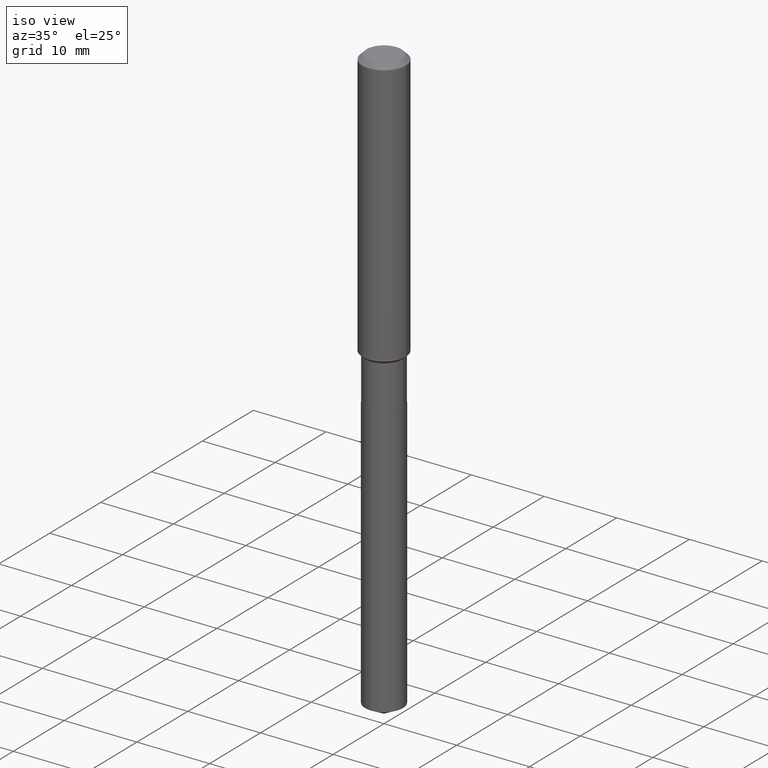
[diagram: clean part render]
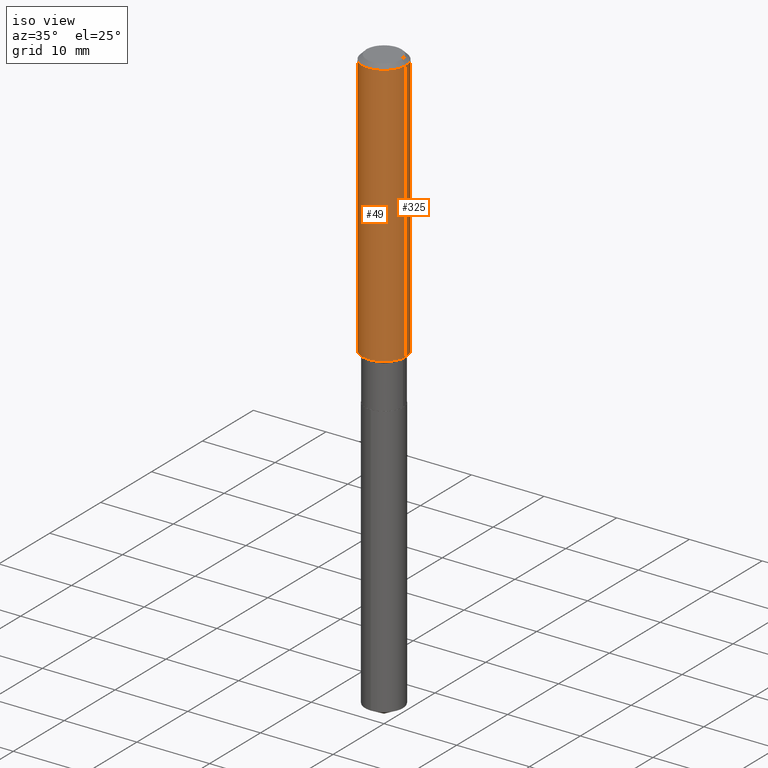
[diagram: same view with one multi-face feature highlighted, each face labeled with its STEP entity id]
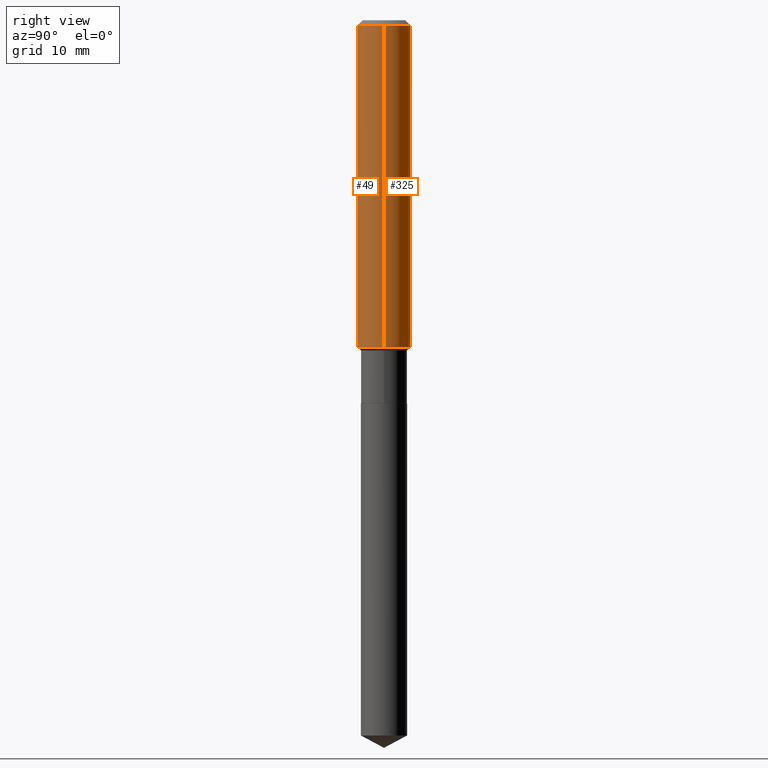
[diagram: same view with one multi-face feature highlighted, each face labeled with its STEP entity id]
A machine part, iso view. The highlighted faces form ONE feature: a constant-radius fillet chain: 2 tangent blend faces with common blend radius 2.9997 mm. The faces share edges in the B-rep.
A second angle (right view) of the same feature is appended — it is thin or edge-on in the first view.
Their STEP definitions:
[1] entity #325 (Cylinder):
#6 = DIRECTION ( 'NONE',  ( -2.445468806185136877E-29, 3.491481338843145188E-15, 1.000000000000000000 ) ) ;
#10 = EDGE_CURVE ( 'NONE', #382, #62, #107, .T. ) ;
#32 = VECTOR ( 'NONE', #6, 39.37007874015748143 ) ;
#33 = CIRCLE ( 'NONE', #448, 0.1181000000000001632 ) ;
#41 = EDGE_LOOP ( 'NONE', ( #432, #351, #135, #131 ) ) ;
#62 = VERTEX_POINT ( 'NONE', #322 ) ;
#73 = EDGE_CURVE ( 'NONE', #161, #62, #453, .T. ) ;
#101 = DIRECTION ( 'NONE',  ( 1.000000000000000000, -6.982962677686263555E-15, 0.000000000000000000 ) ) ;
#107 = CIRCLE ( 'NONE', #385, 0.1180999999999999966 ) ;
#131 = ORIENTED_EDGE ( 'NONE', *, *, #159, .F. ) ;
#135 = ORIENTED_EDGE ( 'NONE', *, *, #10, .F. ) ;
#159 = EDGE_CURVE ( 'NONE', #462, #382, #413, .T. ) ;
#161 = VERTEX_POINT ( 'NONE', #324 ) ;
#167 = DIRECTION ( 'NONE',  ( -2.445468806185136597E-29, 3.491481338843145583E-15, 1.000000000000000000 ) ) ;
#199 = CARTESIAN_POINT ( 'NONE',  ( 0.1180999999999999966, -9.071566814582237199E-16, -0.02362000000000014088 ) ) ;
#203 = DIRECTION ( 'NONE',  ( -2.445468806185136597E-29, 3.491481338843145583E-15, 1.000000000000000000 ) ) ;
#209 = CARTESIAN_POINT ( 'NONE',  ( 0.1181000000000001632, -5.885764666954829235E-15, -1.449549999999999894 ) ) ;
#231 = CARTESIAN_POINT ( 'NONE',  ( 5.776197320209327532E-31, -8.246878922347559293E-17, -0.02362000000000014088 ) ) ;
#242 = CYLINDRICAL_SURFACE ( 'NONE', #280, 0.1181000000000000799 ) ;
#250 = DIRECTION ( 'NONE',  ( -2.445468806185136597E-29, 3.491481338843145583E-15, 1.000000000000000000 ) ) ;
#255 = CARTESIAN_POINT ( 'NONE',  ( 3.544829308005664880E-29, -5.061076774720080972E-15, -1.449549999999999894 ) ) ;
#280 = AXIS2_PLACEMENT_3D ( 'NONE', #452, #167, #457 ) ;
#312 = FACE_OUTER_BOUND ( 'NONE', #41, .T. ) ;
#322 = CARTESIAN_POINT ( 'NONE',  ( -0.1180999999999999966, -1.732621811039098637E-15, -0.02362000000000014088 ) ) ;
#324 = CARTESIAN_POINT ( 'NONE',  ( -0.1181000000000001632, -4.221925803787401987E-15, -1.449549999999999894 ) ) ;
#325 = ADVANCED_FACE ( 'NONE', ( #312 ), #242, .T. ) ;
#332 = VECTOR ( 'NONE', #483, 39.37007874015748143 ) ;
#351 = ORIENTED_EDGE ( 'NONE', *, *, #73, .T. ) ;
#361 = DIRECTION ( 'NONE',  ( 1.000000000000000000, -6.982962677686266711E-15, 0.000000000000000000 ) ) ;
#382 = VERTEX_POINT ( 'NONE', #199 ) ;
#384 = CARTESIAN_POINT ( 'NONE',  ( 0.1181000000000000799, -8.246878922347486570E-16, 5.758764772215004644E-30 ) ) ;
#385 = AXIS2_PLACEMENT_3D ( 'NONE', #231, #203, #361 ) ;
#410 = CARTESIAN_POINT ( 'NONE',  ( -0.1181000000000000799, 8.391509709326788873E-16, -5.809262341591047988E-30 ) ) ;
#413 = LINE ( 'NONE', #384, #32 ) ;
#432 = ORIENTED_EDGE ( 'NONE', *, *, #449, .T. ) ;
#448 = AXIS2_PLACEMENT_3D ( 'NONE', #255, #250, #101 ) ;
#449 = EDGE_CURVE ( 'NONE', #462, #161, #33, .T. ) ;
#452 = CARTESIAN_POINT ( 'NONE',  ( 0.000000000000000000, 0.000000000000000000, 0.000000000000000000 ) ) ;
#453 = LINE ( 'NONE', #410, #332 ) ;
#457 = DIRECTION ( 'NONE',  ( 1.000000000000000000, -6.982962677686266711E-15, 4.876176775795936353E-29 ) ) ;
#462 = VERTEX_POINT ( 'NONE', #209 ) ;
#483 = DIRECTION ( 'NONE',  ( -2.445468806185136877E-29, 3.491481338843145188E-15, 1.000000000000000000 ) ) ;
[2] entity #49 (Cylinder):
#5 = CARTESIAN_POINT ( 'NONE',  ( 3.544829308005664880E-29, -5.061076774720080972E-15, -1.449549999999999894 ) ) ;
#6 = DIRECTION ( 'NONE',  ( -2.445468806185136877E-29, 3.491481338843145188E-15, 1.000000000000000000 ) ) ;
#15 = DIRECTION ( 'NONE',  ( 1.000000000000000000, -6.982962677686266711E-15, 4.876176775795936353E-29 ) ) ;
#32 = VECTOR ( 'NONE', #6, 39.37007874015748143 ) ;
#36 = EDGE_CURVE ( 'NONE', #62, #382, #347, .T. ) ;
#42 = CIRCLE ( 'NONE', #371, 0.1181000000000001632 ) ;
#49 = ADVANCED_FACE ( 'NONE', ( #341 ), #477, .T. ) ;
#56 = DIRECTION ( 'NONE',  ( -2.445468806185136597E-29, 3.491481338843145583E-15, 1.000000000000000000 ) ) ;
#62 = VERTEX_POINT ( 'NONE', #322 ) ;
#73 = EDGE_CURVE ( 'NONE', #161, #62, #453, .T. ) ;
#77 = CARTESIAN_POINT ( 'NONE',  ( 5.776197320209327532E-31, -8.246878922347559293E-17, -0.02362000000000014088 ) ) ;
#88 = DIRECTION ( 'NONE',  ( 1.000000000000000000, -6.982962677686266711E-15, 0.000000000000000000 ) ) ;
#99 = AXIS2_PLACEMENT_3D ( 'NONE', #77, #423, #88 ) ;
#125 = DIRECTION ( 'NONE',  ( -2.445468806185136597E-29, 3.491481338843145583E-15, 1.000000000000000000 ) ) ;
#148 = ORIENTED_EDGE ( 'NONE', *, *, #310, .T. ) ;
#159 = EDGE_CURVE ( 'NONE', #462, #382, #413, .T. ) ;
#161 = VERTEX_POINT ( 'NONE', #324 ) ;
#169 = ORIENTED_EDGE ( 'NONE', *, *, #73, .F. ) ;
#177 = ORIENTED_EDGE ( 'NONE', *, *, #36, .F. ) ;
#199 = CARTESIAN_POINT ( 'NONE',  ( 0.1180999999999999966, -9.071566814582237199E-16, -0.02362000000000014088 ) ) ;
#209 = CARTESIAN_POINT ( 'NONE',  ( 0.1181000000000001632, -5.885764666954829235E-15, -1.449549999999999894 ) ) ;
#297 = CARTESIAN_POINT ( 'NONE',  ( 0.000000000000000000, 0.000000000000000000, 0.000000000000000000 ) ) ;
#310 = EDGE_CURVE ( 'NONE', #161, #462, #42, .T. ) ;
#322 = CARTESIAN_POINT ( 'NONE',  ( -0.1180999999999999966, -1.732621811039098637E-15, -0.02362000000000014088 ) ) ;
#324 = CARTESIAN_POINT ( 'NONE',  ( -0.1181000000000001632, -4.221925803787401987E-15, -1.449549999999999894 ) ) ;
#332 = VECTOR ( 'NONE', #483, 39.37007874015748143 ) ;
#335 = ORIENTED_EDGE ( 'NONE', *, *, #159, .T. ) ;
#341 = FACE_OUTER_BOUND ( 'NONE', #345, .T. ) ;
#345 = EDGE_LOOP ( 'NONE', ( #169, #148, #335, #177 ) ) ;
#347 = CIRCLE ( 'NONE', #99, 0.1180999999999999966 ) ;
#371 = AXIS2_PLACEMENT_3D ( 'NONE', #5, #125, #424 ) ;
#382 = VERTEX_POINT ( 'NONE', #199 ) ;
#384 = CARTESIAN_POINT ( 'NONE',  ( 0.1181000000000000799, -8.246878922347486570E-16, 5.758764772215004644E-30 ) ) ;
#410 = CARTESIAN_POINT ( 'NONE',  ( -0.1181000000000000799, 8.391509709326788873E-16, -5.809262341591047988E-30 ) ) ;
#413 = LINE ( 'NONE', #384, #32 ) ;
#423 = DIRECTION ( 'NONE',  ( -2.445468806185136597E-29, 3.491481338843145583E-15, 1.000000000000000000 ) ) ;
#424 = DIRECTION ( 'NONE',  ( 1.000000000000000000, -6.982962677686263555E-15, 0.000000000000000000 ) ) ;
#445 = AXIS2_PLACEMENT_3D ( 'NONE', #297, #56, #15 ) ;
#453 = LINE ( 'NONE', #410, #332 ) ;
#462 = VERTEX_POINT ( 'NONE', #209 ) ;
#477 = CYLINDRICAL_SURFACE ( 'NONE', #445, 0.1181000000000000799 ) ;
#483 = DIRECTION ( 'NONE',  ( -2.445468806185136877E-29, 3.491481338843145188E-15, 1.000000000000000000 ) ) ;